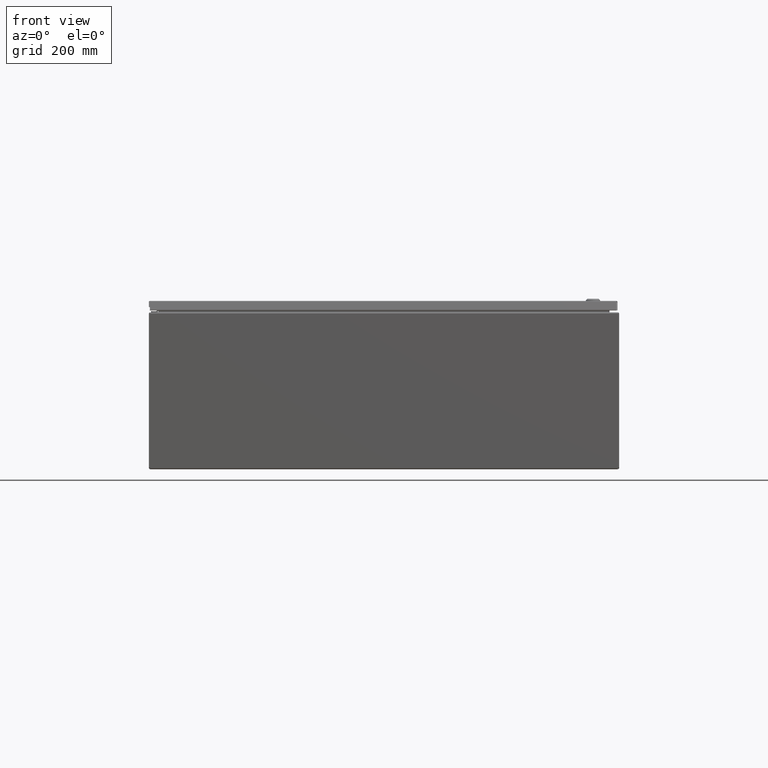
[diagram: clean part render]
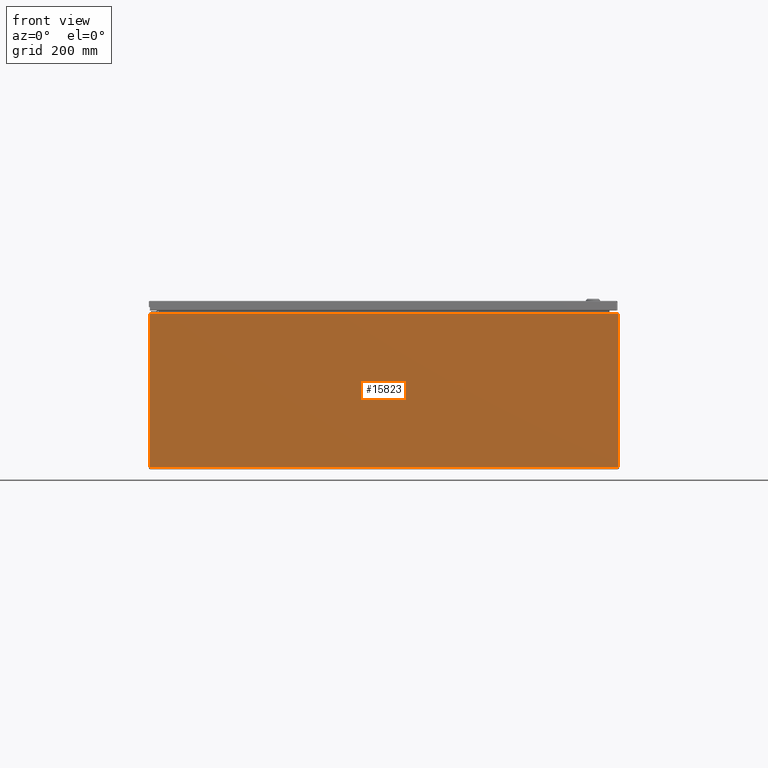
[diagram: same view with one face highlighted and labeled with its STEP entity id]
A machine part, front view. The second image highlights one B-rep face of the part: STEP entity #15823.
In plain terms, the highlighted planar face has unit normal (-0, 1, 0).
Its self-contained STEP definition (entity closure, byte-faithful):
#432=PLANE('',#16847);
#1203=LINE('',#23561,#2430);
#1239=LINE('',#24245,#2466);
#1246=LINE('',#24329,#2473);
#1247=LINE('',#24330,#2474);
#2430=VECTOR('',#18633,35.926);
#2466=VECTOR('',#18709,35.7655336786488);
#2473=VECTOR('',#18722,11.7672998644083);
#2474=VECTOR('',#18723,11.7672998644083);
#3983=FACE_OUTER_BOUND('',#4987,.T.);
#4987=EDGE_LOOP('',(#10807,#10808,#10809,#10810,#10811,#10812));
#6098=CIRCLE('',#16841,0.07);
#6100=CIRCLE('',#16848,0.07);
#6847=VERTEX_POINT('',#23555);
#6848=VERTEX_POINT('',#23560);
#6871=VERTEX_POINT('',#24041);
#6872=VERTEX_POINT('',#24043);
#6890=VERTEX_POINT('',#24237);
#6894=VERTEX_POINT('',#24327);
#8321=EDGE_CURVE('',#6848,#6847,#1203,.T.);
#8375=EDGE_CURVE('',#6872,#6871,#6098,.T.);
#8398=EDGE_CURVE('',#6871,#6890,#1239,.T.);
#8409=EDGE_CURVE('',#6890,#6894,#6100,.T.);
#8410=EDGE_CURVE('',#6848,#6894,#1246,.T.);
#8411=EDGE_CURVE('',#6872,#6847,#1247,.T.);
#10807=ORIENTED_EDGE('',*,*,#8375,.T.);
#10808=ORIENTED_EDGE('',*,*,#8398,.T.);
#10809=ORIENTED_EDGE('',*,*,#8409,.T.);
#10810=ORIENTED_EDGE('',*,*,#8410,.F.);
#10811=ORIENTED_EDGE('',*,*,#8321,.T.);
#10812=ORIENTED_EDGE('',*,*,#8411,.F.);
#15823=ADVANCED_FACE('',(#3983),#432,.F.);
#16841=AXIS2_PLACEMENT_3D('',#24044,#18688,#18689);
#16847=AXIS2_PLACEMENT_3D('',#24326,#18718,#18719);
#16848=AXIS2_PLACEMENT_3D('',#24328,#18720,#18721);
#18633=DIRECTION('',(-1.,-1.11022302462516E-016,-9.73368064914088E-059));
#18688=DIRECTION('center_axis',(-1.09735455228232E-016,1.,1.76373168198466E-014));
#18689=DIRECTION('ref_axis',(1.,1.11022302462513E-016,1.50048702372005E-016));
#18709=DIRECTION('',(1.,1.0973545522823E-016,-7.41643247525904E-032));
#18718=DIRECTION('center_axis',(-1.11022302462516E-016,1.,5.76325788925375E-014));
#18719=DIRECTION('ref_axis',(1.,0.,0.));
#18720=DIRECTION('center_axis',(-1.09735455228232E-016,1.,1.76373168198466E-014));
#18721=DIRECTION('ref_axis',(1.,1.11022302462513E-016,1.50048702372005E-016));
#18722=DIRECTION('',(1.15557816664356E-017,1.76674561639309E-014,-1.));
#18723=DIRECTION('',(1.96694711511696E-030,-1.77286885038882E-014,1.));
#23555=CARTESIAN_POINT('',(-17.963,-20.3968214055974,11.89475));
#23560=CARTESIAN_POINT('',(17.963,-20.3968214055974,11.89475));
#23561=CARTESIAN_POINT('',(8.9815,-20.3968214055981,11.89475));
#24041=CARTESIAN_POINT('',(-17.8827668393244,-20.3968214055972,0.105249999999995));
#24043=CARTESIAN_POINT('',(-17.963,-20.3968214055972,0.127450135591769));
#24044=CARTESIAN_POINT('Origin',(-17.9378919211154,-20.3968214055972,0.0621080788845701));
#24237=CARTESIAN_POINT('',(17.8827668393244,-20.3968214055972,0.105250000000001));
#24245=CARTESIAN_POINT('',(4.19822418477271E-015,-20.3968214055972,0.105249999999993));
#24326=CARTESIAN_POINT('Origin',(2.264502075366E-015,-20.396821405596,-20.2726052478281));
#24327=CARTESIAN_POINT('',(17.963,-20.3968214055972,0.127450135591769));
#24328=CARTESIAN_POINT('Origin',(17.9378919211154,-20.3968214055972,0.0621080788845757));
#24329=CARTESIAN_POINT('',(17.963,-20.3968214055972,-0.0673176844616893));
#24330=CARTESIAN_POINT('',(-17.963,-20.3968214055972,0.10524999999999));